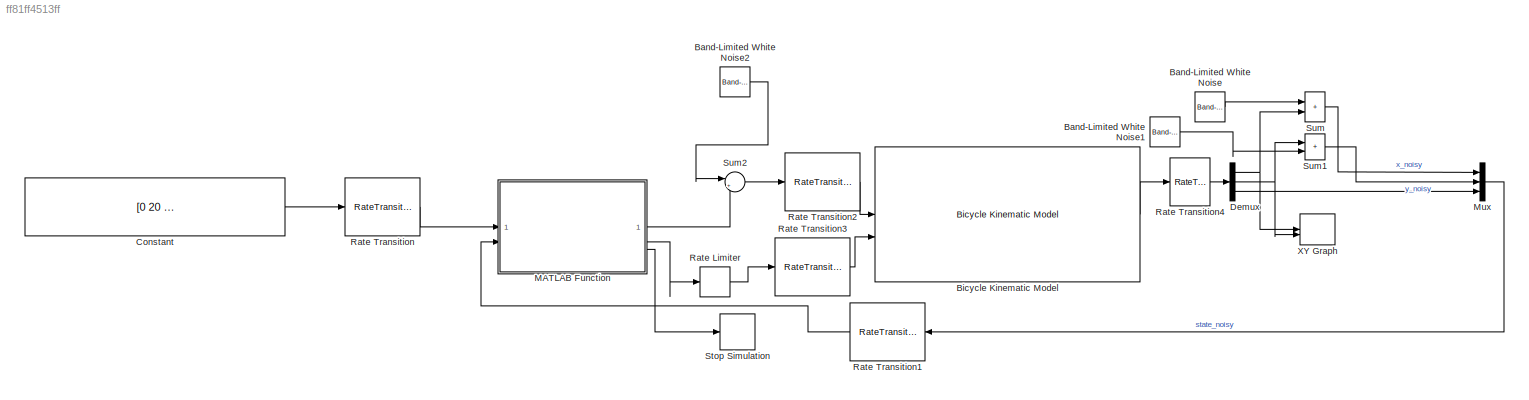
MODEL slx_ff81ff4513ff
KIND model
CONFIG AbsTol = auto
CONFIG EnableMultiTasking = off
CONFIG FixedStep = 1/100000
CONFIG MaxStep = auto
CONFIG MinStep = auto
CONFIG RelTol = 1e-3
CONFIG SampleTimeConstraint = Unconstrained
CONFIG SolverName = VariableStepAuto
CONFIG StartTime = 0.0
CONFIG StopTime = 29
BLOCK [Reference] Band-Limited White Noise  REF=simulink/Sources/Band-Limited
White Noise
  SourceBlock = simulink/Sources/Band-Limited\nWhite Noise
  SourceType = Band-Limited White Noise.
  Tag = noise_x
BLOCK [Reference] Band-Limited White Noise1  REF=simulink/Sources/Band-Limited
White Noise
  SourceBlock = simulink/Sources/Band-Limited\nWhite Noise
  SourceType = Band-Limited White Noise.
  Tag = noise_y
BLOCK [Reference] Band-Limited White Noise2  REF=simulink/Sources/Band-Limited
White Noise
  SourceBlock = simulink/Sources/Band-Limited\nWhite Noise
  SourceType = Band-Limited White Noise.
  Tag = noise_x
BLOCK [Reference] Bicycle Kinematic Model  REF=robotmobilelib/Bicycle Kinematic Model
  SourceBlock = robotmobilelib/Bicycle Kinematic Model
  SourceType = Bicycle Kinematic Model
BLOCK [Constant] Constant
  Value = [0    20   40   60   80   100  120  140  160  180  200;\n 0    10   20   20   10    0   -10  -20  -20  -10    0]
BLOCK [Demux] Demux
  Outputs = 3
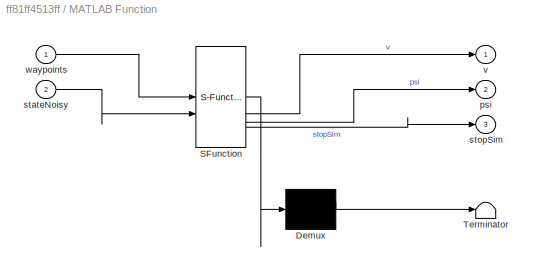
BLOCK [SubSystem] MATLAB Function
  ErrorFcn = Stateflow.Translate.translate
  PermitHierarchicalResolution = ExplicitOnly
  SFBlockType = MATLAB Function
  TreatAsAtomicUnit = on
BLOCK [Demux] MATLAB Function/ Demux 
  Outputs = 1
BLOCK [S-Function] MATLAB Function/ SFunction 
  EnableBusSupport = on
  FunctionName = sf_sfun
  PortCounts = [2 4]
  SFcnIsStateOwnerBlock = off
  SFunctionDeploymentMode = off
  Tag = Stateflow S-Function 2
BLOCK [Terminator] MATLAB Function/ Terminator 
BLOCK [Outport] MATLAB Function/psi
  Port = 2
BLOCK [Inport] MATLAB Function/stateNoisy
  Port = 2
BLOCK [Outport] MATLAB Function/stopSim
  Port = 3
BLOCK [Outport] MATLAB Function/v
BLOCK [Inport] MATLAB Function/waypoints
BLOCK [Mux] Mux
  DisplayOption = bar
  Inputs = 3
BLOCK [RateLimiter] Rate Limiter
  FallingSlewLimit = -pi/4
  RisingSlewLimit = pi/4
  SampleTimeMode = inherited
BLOCK [RateTransition] Rate Transition
  OutPortSampleTime = 1/100
BLOCK [RateTransition] Rate Transition1
  OutPortSampleTime = 1/100
BLOCK [RateTransition] Rate Transition2
  OutPortSampleTime = 1/1000
BLOCK [RateTransition] Rate Transition3
  OutPortSampleTime = 1/1000
BLOCK [RateTransition] Rate Transition4
  OutPortSampleTime = 1/1000
BLOCK [Stop] Stop Simulation
BLOCK [Sum] Sum
  IconShape = rectangular
  Inputs = |++
BLOCK [Sum] Sum1
  IconShape = rectangular
  Inputs = |++
BLOCK [Sum] Sum2
  Inputs = |++
BLOCK [Record] XY Graph
  CompatibilityTag = XY
  FileSettingsInternal = {"entries":[{"content":{"excelSettings":{"content":{},"type":"Streamout.ExcelSettings"}},"type":"Streamout.FileSettingStorage","uuid":""}],"packageUris":["http:\/\/schema.mathworks.com\/mf0\/streamout_blocks\/R2020a"],"version":"1.0"}
  Layout = [1 1]
  SignalsInternal = {"entries":[{"content":{"signals":[{"content":{"blockPath":[],"dimensions":[1],"domain":"","lineColor":"#a2142f","plots":[1],"port":1,"signalID":16,"signalName":"Demux:1"},"type":"RecordBlkView.Signal","uuid":""},{"content":{"blockPath":[],"dimensions":[1],"domain":"","lineColor":"#139fff","plots":[1],"port":2,"signalID":19,"signalName":"Demux:2"},"type":"RecordBlkView.Signal","uuid":""}]},"type":...<+136ch>
  VisualizationBindings = {"xyplotplugin":{"info":[{"series":[{"bindingParametersList":[{"parameter":"X-Axis","signalID":16,"signalName":"Demux:1"},{"parameter":"Y-Axis","signalID":19,"signalName":"Demux:2"}],"seriesID":60465}],"subplotID":1}]}}
LINE Band-Limited White Noise1:1 -> Sum1:2
LINE Band-Limited White Noise2:1 -> Sum2:1
LINE Band-Limited White Noise:1 -> Sum:1
LINE Bicycle Kinematic Model:1 -> Rate Transition4:1
LINE Constant:1 -> Rate Transition:1
NET Demux:1 -> Sum:2, XY Graph:1
NET Demux:2 -> Sum1:1, XY Graph:2
LINE Demux:3 -> Mux:3
LINE MATLAB Function:1 -> Sum2:2
LINE MATLAB Function:2 -> Rate Limiter:1
LINE MATLAB Function:3 -> Stop Simulation:1
LINE Mux:1 -> Rate Transition1:1
LINE Rate Limiter:1 -> Rate Transition3:1
LINE Rate Transition1:1 -> MATLAB Function:2
LINE Rate Transition2:1 -> Bicycle Kinematic Model:1
LINE Rate Transition3:1 -> Bicycle Kinematic Model:2
LINE Rate Transition4:1 -> Demux:1
LINE Rate Transition:1 -> MATLAB Function:1
LINE Sum1:1 -> Mux:2
LINE Sum2:1 -> Rate Transition2:1
LINE Sum:1 -> Mux:1
note: NET lines group one-source signal fan-out (src -> all destinations, sorted); 1:1 wires keep LINE
CHART MATLAB Function states=1 transitions=1
  STATE_LABEL 'eML_blk_kernel()'
  STATE_LABEL 'SCRIPT:\nfunction [v, psi, stopSim] = controlPI(waypoints, stateNoisy)\n    % CONTROLPI: Controlador PI de la orientación + índice persistente\n    % para avanzar entre varios waypoints.\n    %\n    % Entradas:\n    %   - waypoints: matriz 2xN con las coordenadas [x; y] de los puntos.\n    %   - stateNoisy: vector [x_noisy, y_noisy, theta] con ruido.\n    %\n    % Salidas:\n    %   - v: velocidad del vehícu...<+2591ch>'
CHART  states=0 transitions=0
